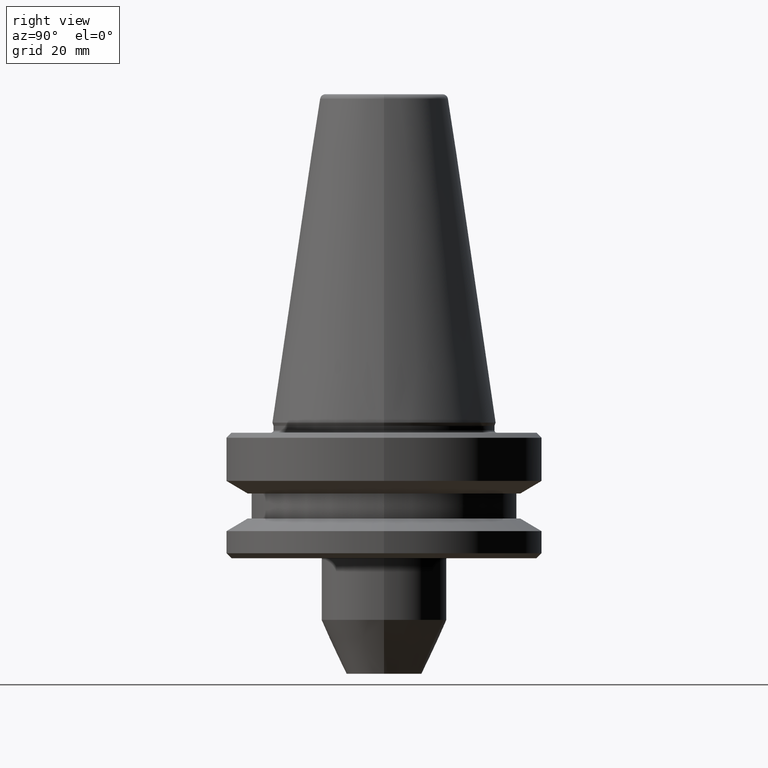
[diagram: clean part render]
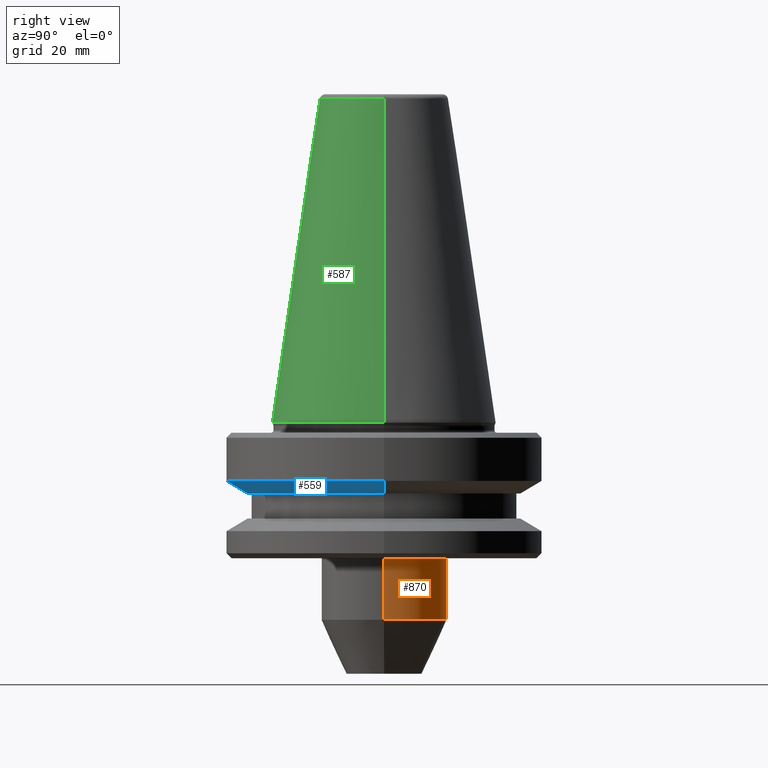
[diagram: same view with three faces highlighted in distinct colors, each labeled with its STEP entity id]
A machine part, right view with three faces highlighted in distinct colors.
Their STEP definitions:

[orange] entity #870 — the highlighted cylindrical surface (partial cylindrical patch) has radius 12.5 mm, axis along (-0, -0, 1).
#13 = AXIS2_PLACEMENT_3D ( 'NONE', #439, #733, #684 ) ;
#18 = DIRECTION ( 'NONE',  ( -0.0000000000000000000, -0.0000000000000000000, 1.000000000000000000 ) ) ;
#96 = CIRCLE ( 'NONE', #668, 12.49999999999995600 ) ;
#114 = ORIENTED_EDGE ( 'NONE', *, *, #859, .T. ) ;
#128 = DIRECTION ( 'NONE',  ( 1.000000000000000000, 0.0000000000000000000, 0.0000000000000000000 ) ) ;
#147 = DIRECTION ( 'NONE',  ( -0.0000000000000000000, -0.0000000000000000000, 1.000000000000000000 ) ) ;
#212 = EDGE_CURVE ( 'NONE', #954, #413, #875, .T. ) ;
#217 = CIRCLE ( 'NONE', #656, 12.49999999999995600 ) ;
#243 = EDGE_LOOP ( 'NONE', ( #114, #522, #612, #292 ) ) ;
#249 = CARTESIAN_POINT ( 'NONE',  ( -12.49999999999995600, 1.530808498934186000E-015, -27.00000000000024500 ) ) ;
#292 = ORIENTED_EDGE ( 'NONE', *, *, #212, .F. ) ;
#298 = VERTEX_POINT ( 'NONE', #305 ) ;
#305 = CARTESIAN_POINT ( 'NONE',  ( -12.49999999999995600, 1.530808498934186000E-015, -39.27746539754928500 ) ) ;
#343 = CARTESIAN_POINT ( 'NONE',  ( 0.0000000000000000000, 0.0000000000000000000, -27.00000000000024500 ) ) ;
#413 = VERTEX_POINT ( 'NONE', #956 ) ;
#431 = EDGE_CURVE ( 'NONE', #413, #464, #217, .T. ) ;
#439 = CARTESIAN_POINT ( 'NONE',  ( 0.0000000000000000000, 0.0000000000000000000, 119.6426757920085500 ) ) ;
#464 = VERTEX_POINT ( 'NONE', #249 ) ;
#504 = DIRECTION ( 'NONE',  ( -0.0000000000000000000, -0.0000000000000000000, 1.000000000000000000 ) ) ;
#517 = LINE ( 'NONE', #703, #727 ) ;
#522 = ORIENTED_EDGE ( 'NONE', *, *, #774, .T. ) ;
#582 = CARTESIAN_POINT ( 'NONE',  ( 12.49999999999995600, 0.0000000000000000000, 119.6426757920085500 ) ) ;
#604 = DIRECTION ( 'NONE',  ( 1.000000000000000000, 0.0000000000000000000, 0.0000000000000000000 ) ) ;
#612 = ORIENTED_EDGE ( 'NONE', *, *, #431, .F. ) ;
#629 = DIRECTION ( 'NONE',  ( -0.0000000000000000000, -0.0000000000000000000, 1.000000000000000000 ) ) ;
#656 = AXIS2_PLACEMENT_3D ( 'NONE', #343, #147, #128 ) ;
#668 = AXIS2_PLACEMENT_3D ( 'NONE', #765, #629, #604 ) ;
#684 = DIRECTION ( 'NONE',  ( 1.000000000000000000, 0.0000000000000000000, 0.0000000000000000000 ) ) ;
#703 = CARTESIAN_POINT ( 'NONE',  ( -12.49999999999995600, 1.530808498934186000E-015, 119.6426757920085500 ) ) ;
#726 = CARTESIAN_POINT ( 'NONE',  ( 12.49999999999995600, 0.0000000000000000000, -39.27746539754928500 ) ) ;
#727 = VECTOR ( 'NONE', #18, 1000.000000000000000 ) ;
#733 = DIRECTION ( 'NONE',  ( -0.0000000000000000000, -0.0000000000000000000, 1.000000000000000000 ) ) ;
#742 = CYLINDRICAL_SURFACE ( 'NONE', #13, 12.49999999999995600 ) ;
#765 = CARTESIAN_POINT ( 'NONE',  ( 0.0000000000000000000, 0.0000000000000000000, -39.27746539754928500 ) ) ;
#774 = EDGE_CURVE ( 'NONE', #298, #464, #517, .T. ) ;
#859 = EDGE_CURVE ( 'NONE', #954, #298, #96, .T. ) ;
#870 = ADVANCED_FACE ( 'NONE', ( #898 ), #742, .T. ) ;
#875 = LINE ( 'NONE', #582, #998 ) ;
#898 = FACE_OUTER_BOUND ( 'NONE', #243, .T. ) ;
#954 = VERTEX_POINT ( 'NONE', #726 ) ;
#956 = CARTESIAN_POINT ( 'NONE',  ( 12.49999999999995600, 0.0000000000000000000, -27.00000000000024500 ) ) ;
#998 = VECTOR ( 'NONE', #504, 1000.000000000000000 ) ;

[blue] entity #559 — the highlighted conical surface has half-angle 60 deg.
#19 = CARTESIAN_POINT ( 'NONE',  ( 27.16962701892289200, 0.0000000000000000000, -14.09999999999966700 ) ) ;
#28 = VERTEX_POINT ( 'NONE', #19 ) ;
#44 = DIRECTION ( 'NONE',  ( -0.0000000000000000000, -0.0000000000000000000, 1.000000000000000000 ) ) ;
#67 = CONICAL_SURFACE ( 'NONE', #885, 27.16962701892289200, 1.047197551196600300 ) ;
#75 = DIRECTION ( 'NONE',  ( -0.0000000000000000000, -0.0000000000000000000, 1.000000000000000000 ) ) ;
#95 = CARTESIAN_POINT ( 'NONE',  ( -31.49999999999997200, 3.857637417314159500E-015, -11.59985799368334900 ) ) ;
#99 = ORIENTED_EDGE ( 'NONE', *, *, #732, .F. ) ;
#151 = CARTESIAN_POINT ( 'NONE',  ( 31.49999999999997200, 0.0000000000000000000, -11.59985799368334900 ) ) ;
#196 = EDGE_CURVE ( 'NONE', #982, #986, #487, .T. ) ;
#228 = AXIS2_PLACEMENT_3D ( 'NONE', #263, #44, #285 ) ;
#263 = CARTESIAN_POINT ( 'NONE',  ( 0.0000000000000000000, 0.0000000000000000000, -14.09999999999966700 ) ) ;
#285 = DIRECTION ( 'NONE',  ( 1.000000000000000000, 0.0000000000000000000, 0.0000000000000000000 ) ) ;
#320 = CARTESIAN_POINT ( 'NONE',  ( -27.16962701892289200, 3.327319676275136300E-015, -14.09999999999966700 ) ) ;
#363 = DIRECTION ( 'NONE',  ( 0.8660254037844398200, 0.0000000000000000000, 0.4999999999999977200 ) ) ;
#410 = CARTESIAN_POINT ( 'NONE',  ( -27.16962701892289200, 3.592478546794647300E-015, -14.09999999999966700 ) ) ;
#425 = CARTESIAN_POINT ( 'NONE',  ( 0.0000000000000000000, 0.0000000000000000000, -11.59985799368334900 ) ) ;
#429 = ORIENTED_EDGE ( 'NONE', *, *, #196, .F. ) ;
#436 = EDGE_CURVE ( 'NONE', #982, #28, #533, .T. ) ;
#463 = DIRECTION ( 'NONE',  ( 1.000000000000000000, 0.0000000000000000000, 0.0000000000000000000 ) ) ;
#476 = EDGE_LOOP ( 'NONE', ( #429, #935, #611, #99 ) ) ;
#487 = LINE ( 'NONE', #320, #971 ) ;
#490 = DIRECTION ( 'NONE',  ( -0.8660254037844398200, 1.060575238724908400E-016, 0.4999999999999977200 ) ) ;
#498 = LINE ( 'NONE', #905, #929 ) ;
#501 = FACE_OUTER_BOUND ( 'NONE', #476, .T. ) ;
#533 = CIRCLE ( 'NONE', #228, 27.16962701892289200 ) ;
#559 = ADVANCED_FACE ( 'NONE', ( #501 ), #67, .T. ) ;
#562 = VERTEX_POINT ( 'NONE', #151 ) ;
#565 = CIRCLE ( 'NONE', #779, 31.49999999999997200 ) ;
#611 = ORIENTED_EDGE ( 'NONE', *, *, #866, .T. ) ;
#732 = EDGE_CURVE ( 'NONE', #986, #562, #565, .T. ) ;
#748 = DIRECTION ( 'NONE',  ( 1.000000000000000000, 0.0000000000000000000, 0.0000000000000000000 ) ) ;
#779 = AXIS2_PLACEMENT_3D ( 'NONE', #425, #784, #463 ) ;
#784 = DIRECTION ( 'NONE',  ( -0.0000000000000000000, -0.0000000000000000000, 1.000000000000000000 ) ) ;
#836 = CARTESIAN_POINT ( 'NONE',  ( 0.0000000000000000000, 0.0000000000000000000, -14.09999999999966700 ) ) ;
#866 = EDGE_CURVE ( 'NONE', #28, #562, #498, .T. ) ;
#885 = AXIS2_PLACEMENT_3D ( 'NONE', #836, #75, #748 ) ;
#905 = CARTESIAN_POINT ( 'NONE',  ( 27.16962701892289200, 0.0000000000000000000, -14.09999999999966700 ) ) ;
#929 = VECTOR ( 'NONE', #363, 1000.000000000000100 ) ;
#935 = ORIENTED_EDGE ( 'NONE', *, *, #436, .T. ) ;
#971 = VECTOR ( 'NONE', #490, 1000.000000000000100 ) ;
#982 = VERTEX_POINT ( 'NONE', #410 ) ;
#986 = VERTEX_POINT ( 'NONE', #95 ) ;

[green] entity #587 — the highlighted conical surface has half-angle 8.297 deg.
#156 = AXIS2_PLACEMENT_3D ( 'NONE', #265, #377, #509 ) ;
#172 = ORIENTED_EDGE ( 'NONE', *, *, #531, .F. ) ;
#200 = DIRECTION ( 'NONE',  ( -0.0000000000000000000, -0.0000000000000000000, 1.000000000000000000 ) ) ;
#220 = FACE_OUTER_BOUND ( 'NONE', #772, .T. ) ;
#221 = CIRCLE ( 'NONE', #271, 12.81220206925726000 ) ;
#265 = CARTESIAN_POINT ( 'NONE',  ( 0.0000000000000000000, 0.0000000000000000000, 0.0000000000000000000 ) ) ;
#271 = AXIS2_PLACEMENT_3D ( 'NONE', #310, #200, #739 ) ;
#279 = ORIENTED_EDGE ( 'NONE', *, *, #572, .T. ) ;
#310 = CARTESIAN_POINT ( 'NONE',  ( 0.0000000000000000000, 0.0000000000000000000, 64.54430818888879200 ) ) ;
#315 = CARTESIAN_POINT ( 'NONE',  ( -22.22499999999982700, 0.0000000000000000000, 0.0000000000000000000 ) ) ;
#323 = CARTESIAN_POINT ( 'NONE',  ( 0.0000000000000000000, 0.0000000000000000000, 0.0000000000000000000 ) ) ;
#340 = CARTESIAN_POINT ( 'NONE',  ( -22.22499999999982700, 2.721777511104971500E-015, 0.0000000000000000000 ) ) ;
#341 = CIRCLE ( 'NONE', #344, 22.22499999999982700 ) ;
#344 = AXIS2_PLACEMENT_3D ( 'NONE', #323, #864, #613 ) ;
#377 = DIRECTION ( 'NONE',  ( 0.0000000000000000000, 0.0000000000000000000, -1.000000000000000000 ) ) ;
#417 = VECTOR ( 'NONE', #694, 1000.000000000000000 ) ;
#441 = LINE ( 'NONE', #715, #417 ) ;
#494 = VECTOR ( 'NONE', #848, 1000.000000000000000 ) ;
#502 = ORIENTED_EDGE ( 'NONE', *, *, #767, .F. ) ;
#509 = DIRECTION ( 'NONE',  ( -1.000000000000000000, 0.0000000000000000000, 0.0000000000000000000 ) ) ;
#531 = EDGE_CURVE ( 'NONE', #811, #920, #441, .T. ) ;
#572 = EDGE_CURVE ( 'NONE', #705, #746, #696, .T. ) ;
#576 = CARTESIAN_POINT ( 'NONE',  ( 22.22499999999982700, 0.0000000000000000000, 0.0000000000000000000 ) ) ;
#587 = ADVANCED_FACE ( 'NONE', ( #220 ), #790, .T. ) ;
#613 = DIRECTION ( 'NONE',  ( 1.000000000000000000, 0.0000000000000000000, 0.0000000000000000000 ) ) ;
#655 = CARTESIAN_POINT ( 'NONE',  ( 12.81220206925727100, 0.0000000000000000000, 64.54430818888879200 ) ) ;
#686 = EDGE_CURVE ( 'NONE', #746, #920, #341, .T. ) ;
#692 = ORIENTED_EDGE ( 'NONE', *, *, #686, .T. ) ;
#694 = DIRECTION ( 'NONE',  ( 0.1443081888881785900, 1.767265616126595600E-017, -0.9895327920891827700 ) ) ;
#696 = LINE ( 'NONE', #315, #494 ) ;
#705 = VERTEX_POINT ( 'NONE', #979 ) ;
#715 = CARTESIAN_POINT ( 'NONE',  ( 22.22499999999982700, 2.721777511104971500E-015, 0.0000000000000000000 ) ) ;
#739 = DIRECTION ( 'NONE',  ( 1.000000000000000000, 0.0000000000000000000, 0.0000000000000000000 ) ) ;
#746 = VERTEX_POINT ( 'NONE', #340 ) ;
#767 = EDGE_CURVE ( 'NONE', #705, #811, #221, .T. ) ;
#772 = EDGE_LOOP ( 'NONE', ( #172, #502, #279, #692 ) ) ;
#790 = CONICAL_SURFACE ( 'NONE', #156, 22.22499999999982700, 0.1448138077623188100 ) ;
#811 = VERTEX_POINT ( 'NONE', #655 ) ;
#848 = DIRECTION ( 'NONE',  ( -0.1443081888881785900, 0.0000000000000000000, -0.9895327920891827700 ) ) ;
#864 = DIRECTION ( 'NONE',  ( -0.0000000000000000000, -0.0000000000000000000, 1.000000000000000000 ) ) ;
#920 = VERTEX_POINT ( 'NONE', #576 ) ;
#979 = CARTESIAN_POINT ( 'NONE',  ( -12.81220206925727100, 1.569042225414501400E-015, 64.54430818888879200 ) ) ;